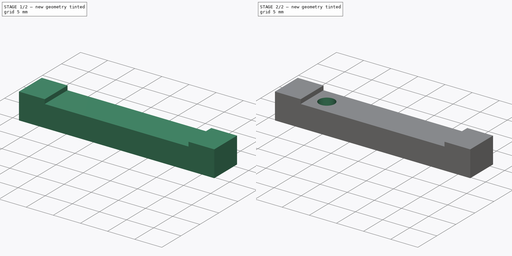
[diagram: build sequence overview — one tinted view per stage of 2, left to right]
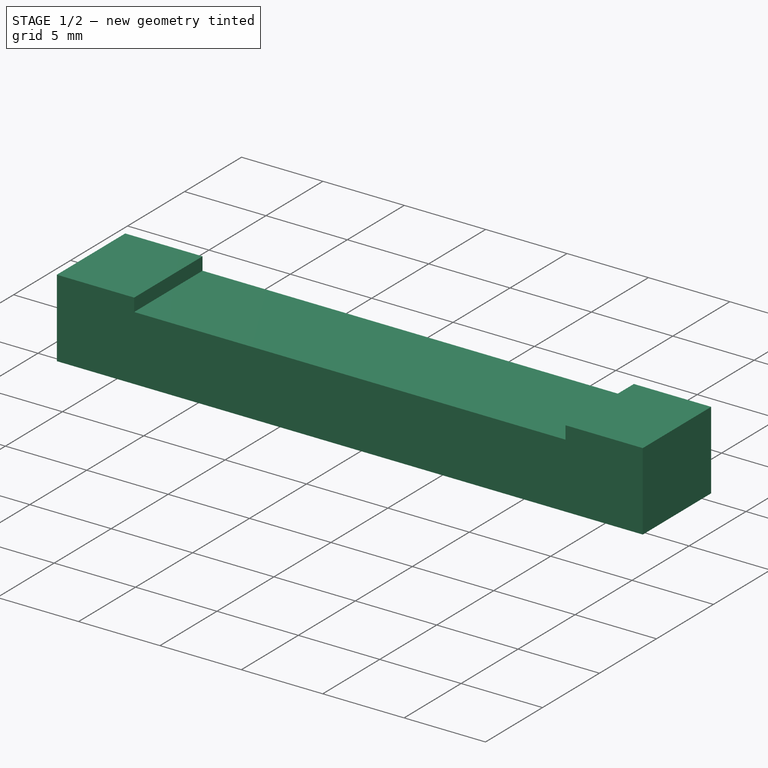
[diagram: stage 1 of 2 — iso view after this stage's code; geometry added in this stage tinted green]
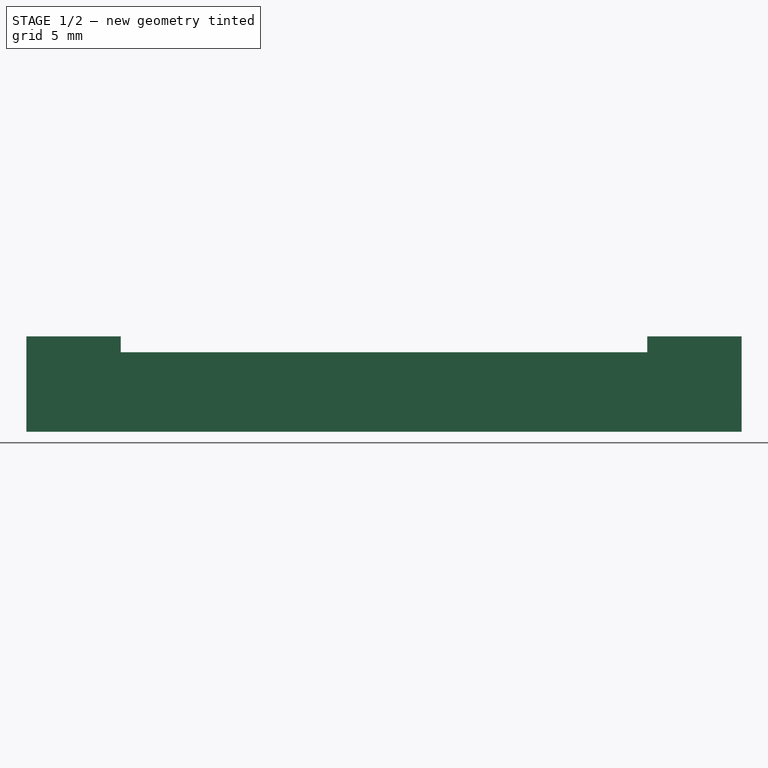
[diagram: stage 1 of 2 — front view after this stage's code; geometry added in this stage tinted green]
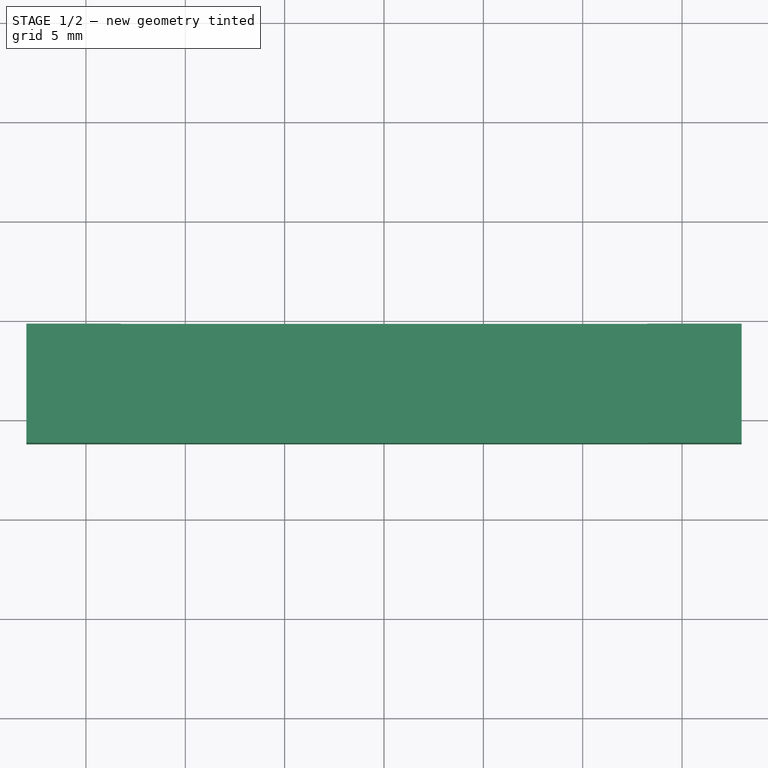
[diagram: stage 1 of 2 — top view after this stage's code; geometry added in this stage tinted green]
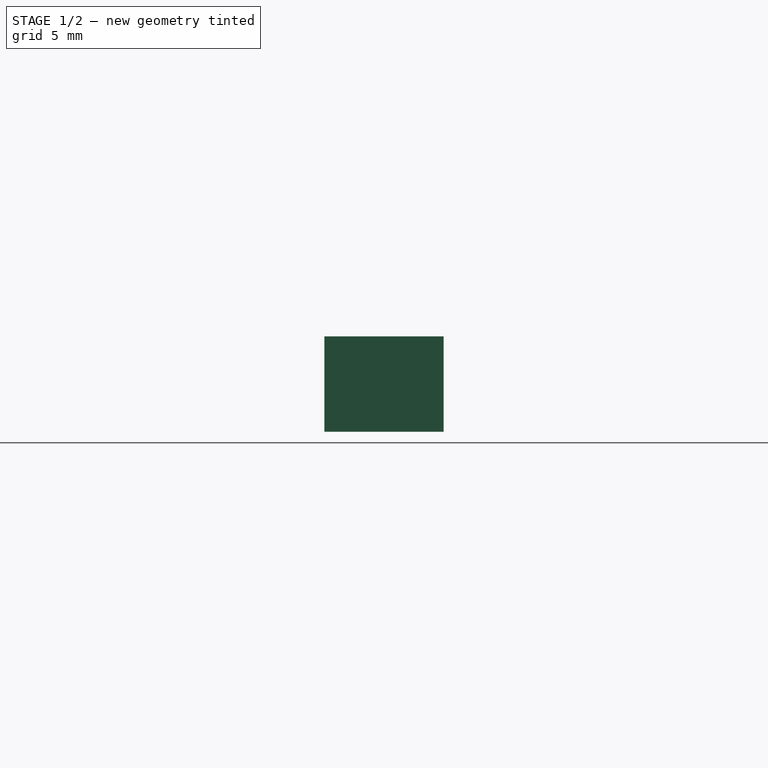
[diagram: stage 1 of 2 — right view after this stage's code; geometry added in this stage tinted green]
FCSTD DOCUMENT  (FreeCAD 1.0R39109 (Git))
Label: ElectronicsBayLolin32Lite-board-retainer.stl
License: All rights reserved
LicenseURL: http://en.wikipedia.org/wiki/All_rights_reserved
objects: Sketcher::SketchObject×2, PartDesign::Pad×1, PartDesign::Hole×1, PartDesign::Body×1, App::Part×1
note: 11 computed .brp shape members not serialized (recipe doc carries the construction recipe); baked Part::Feature solids carry a one-line shape summary decoded from their .brp

FEATURE [Sketcher::SketchObject] Sketch016
  ArcFitTolerance = 1e-06
  AttachmentOffset = pos=(0,0,0.2) rot=(0,0,1;0rad)
  AttachmentSupport = -> [XZ_Plane006]
  FullyConstrained = true
  MakeInternals = false
  MapMode = 5
  Placement = pos=(0,-0.2,0) rot=(1,0,0;1.5708rad)
  sketch-geometry (9):
    g0: LineSegment StartX=-18 StartY=2.8 StartZ=0 EndX=-18 EndY=-2 EndZ=0
    g1: LineSegment StartX=-18 StartY=-2 StartZ=0 EndX=18 EndY=-2 EndZ=0
    g2: LineSegment StartX=18 StartY=-2 StartZ=0 EndX=18 EndY=2.8 EndZ=0
    g3: LineSegment StartX=18 StartY=2.8 StartZ=0 EndX=13.25 EndY=2.8 EndZ=0
    g4: LineSegment StartX=13.25 StartY=2.8 StartZ=0 EndX=13.25 EndY=2 EndZ=0
    g5: LineSegment StartX=13.25 StartY=2 StartZ=0 EndX=-13.25 EndY=2 EndZ=0
    g6: LineSegment StartX=-13.25 StartY=2 StartZ=0 EndX=-13.25 EndY=2.8 EndZ=0
    g7: LineSegment StartX=-13.25 StartY=2.8 StartZ=0 EndX=-18 EndY=2.8 EndZ=0
    g8: GeomPoint X=0 Y=2 Z=0
  constraints (25):
    c: Vertical(g0)
    c: Coincident(g0,g1)
    c: Horizontal(g1)
    c: Coincident(g1,g2)
    c: Vertical(g2)
    c: Coincident(g2,g3)
    c: Coincident(g3,g4)
    c: Vertical(g4)
    c: Coincident(g4,g5)
    c: Horizontal(g5)
    c: Coincident(g5,g6)
    c: Coincident(g6,g7)
    c: Coincident(g7,g0)
    c: Horizontal(g3)
    c: Horizontal(g3,g6)
    c: Horizontal(g7)
    c: Equal(g7,g3)
    c: Vertical(g6)
    c: Symmetric(g4,g5,g8)
    c: PointOnObject(g8,g-2)
    c: Distance(g5,g-1) = 2
    c: DistanceY(g6,g6) = 0.8
    c: DistanceY(g0,g-1) = 2
    c: DistanceX(g5,g5) = 26.5
    c: DistanceX(g0,g2) = 36
FEATURE [PartDesign::Pad] Pad007
  Direction = (0,-1,2e-16)
  Length = 6
  Length2 = 10
  Placement = pos=(0,0,0) rot=(1,0,0;1.5708rad)
  Profile = -> Sketch016
  ReferenceAxis = -> Sketch016 [N_Axis]
  Refine = true
  Suppressed = false
  Type = 0
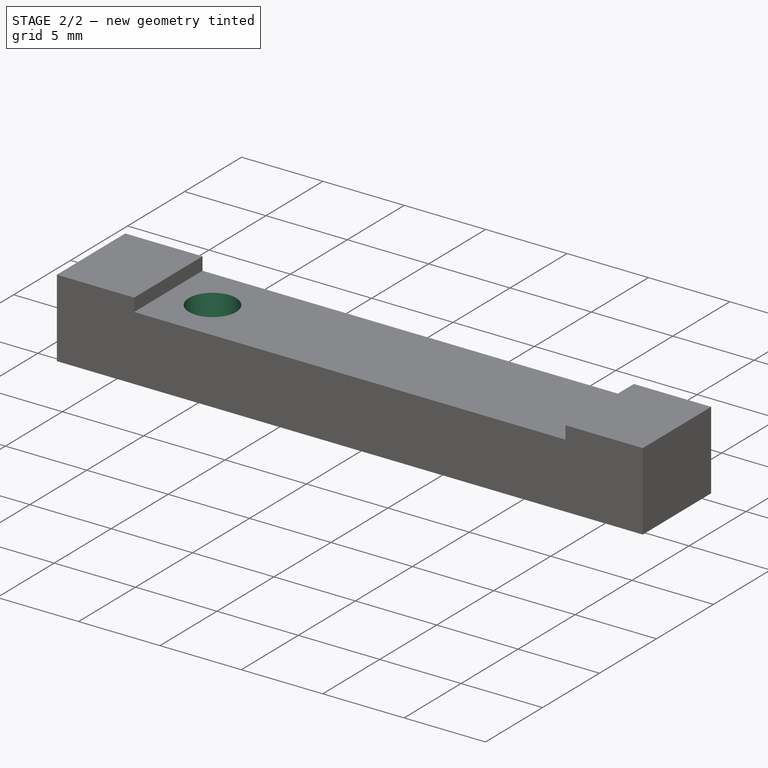
[diagram: stage 2 of 2 — iso view after this stage's code; geometry added in this stage tinted green]
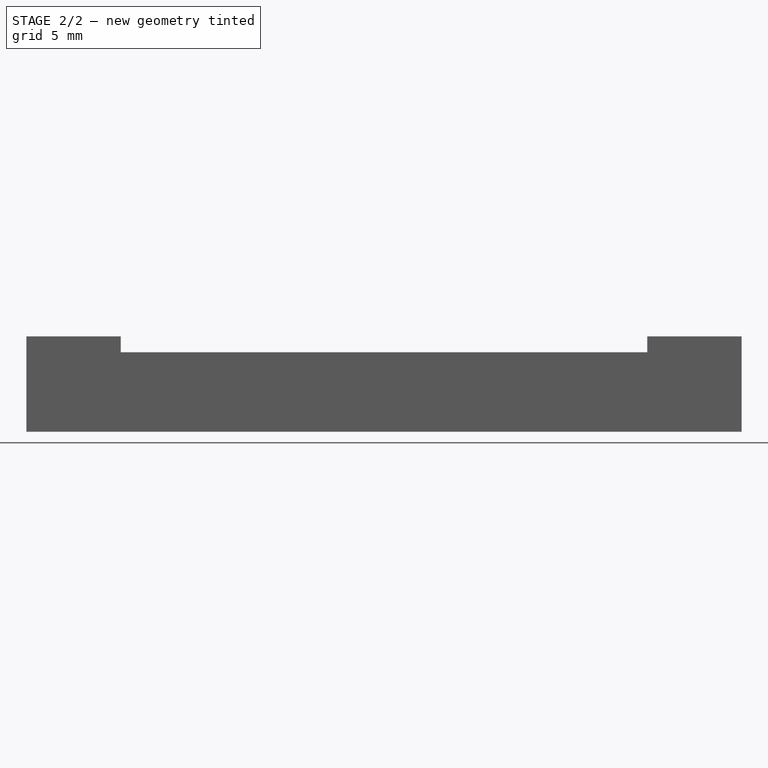
[diagram: stage 2 of 2 — front view after this stage's code; geometry added in this stage tinted green]
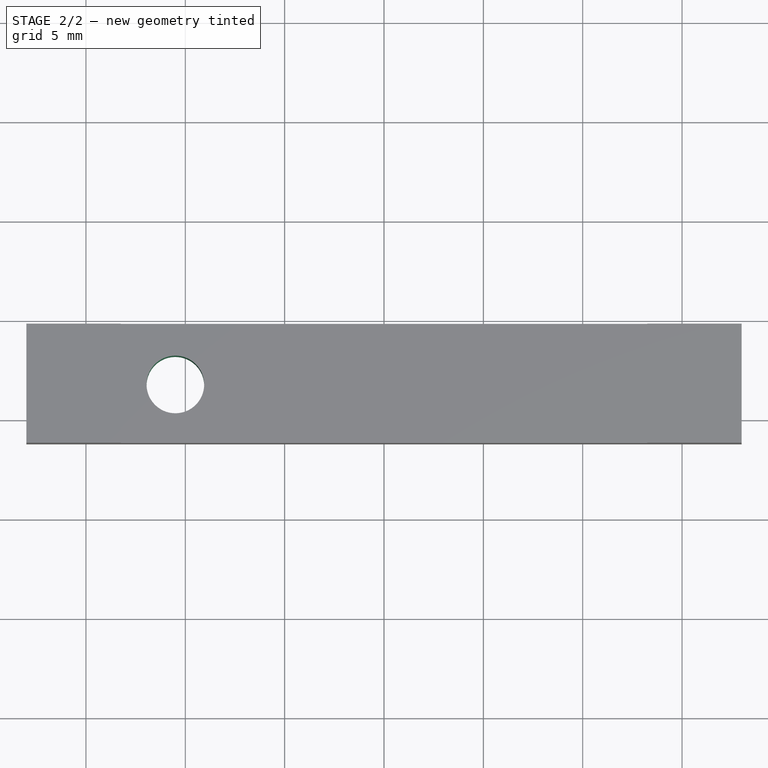
[diagram: stage 2 of 2 — top view after this stage's code; geometry added in this stage tinted green]
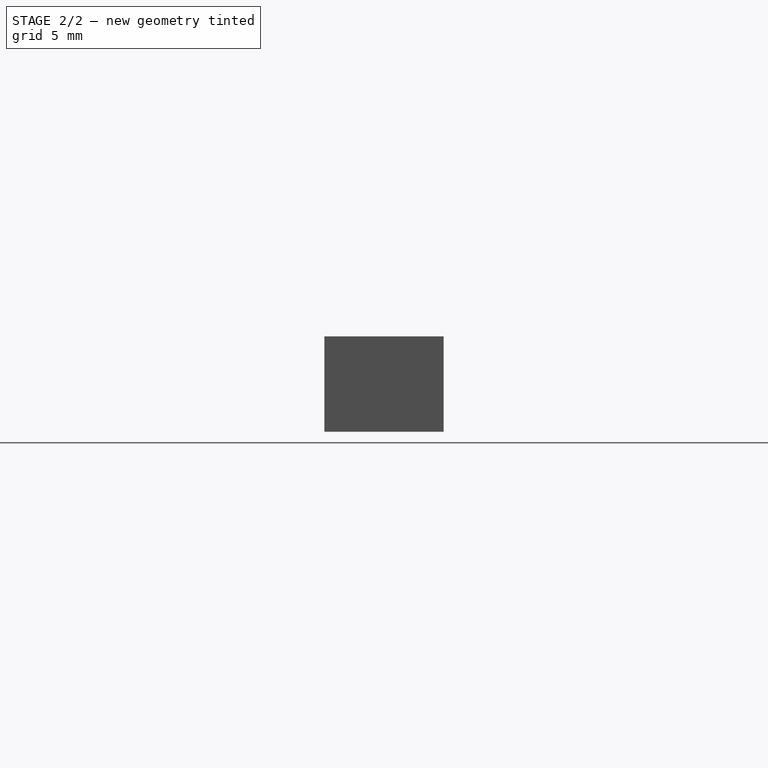
[diagram: stage 2 of 2 — right view after this stage's code; geometry added in this stage tinted green]
FEATURE [Sketcher::SketchObject] Sketch017
  ArcFitTolerance = 1e-06
  AttachmentOffset = pos=(0,0,-2) rot=(0,0,1;0rad)
  AttachmentSupport = -> [XY_Plane006]
  FullyConstrained = true
  MakeInternals = false
  MapMode = 5
  Placement = pos=(0,0,-2) rot=(0,0,1;0rad)
  sketch-geometry (1):
    g0: Circle CenterX=-10.5 CenterY=-3.25 CenterZ=0 NormalX=0 NormalY=0 NormalZ=1 AngleXU=0 Radius=1
  constraints (3):
    c: DistanceY(g0,g-1) = 3.25
    c: DistanceX(g0,g-1) = 10.5
    c: Diameter(g0) = 2
FEATURE [PartDesign::Hole] Hole003
  BaseFeature = -> Pad007
  CustomThreadClearance = 0
  Depth = 74.358
  DepthType = 1
  Diameter = 2.9
  DrillForDepth = false
  DrillPoint = 1
  DrillPointAngle = 118
  HoleCutCountersinkAngle = 90
  HoleCutCustomValues = false
  HoleCutDepth = 0
  HoleCutDiameter = 5
  HoleCutType = 0
  ModelThread = false
  Placement = pos=(0,0,0) rot=(1,0,0;1.5708rad)
  Profile = -> Sketch017
  Refine = true
  Reversed = true
  Suppressed = false
  Tapered = false
  TaperedAngle = 90
  ThreadClass = 0
  ThreadDepth = 74.358
  ThreadDepthType = 0
  ThreadDirection = 0
  ThreadFit = 0
  ThreadSize = 8
  ThreadType = 1
  Threaded = false
  UseCustomThreadClearance = false
FEATURE [PartDesign::Body] Body002  label="Body"
  AllowCompound = false
  Group = -> [Sketch016,Pad007,Sketch017,Hole003]
  Origin = -> Origin006
  Tip = -> Hole003
FEATURE [App::Part] Part003  label="BoardRetainer.stl"
  Group = -> [Body002]
  Origin = -> Origin005
  Placement = pos=(35,40.5,0) rot=(1,0,0;0rad)
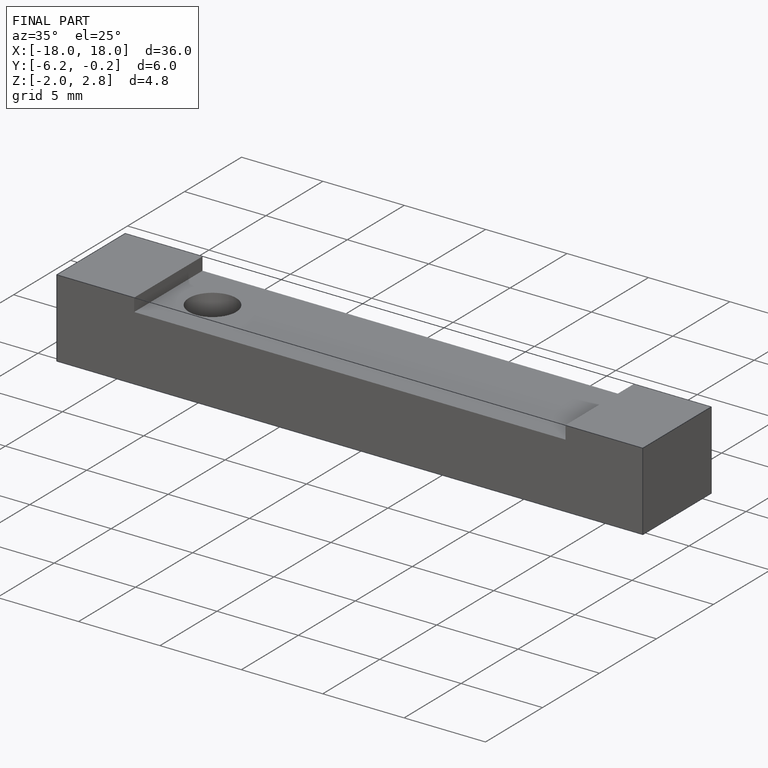
[diagram: finished part — iso view with bounding-box wireframe]
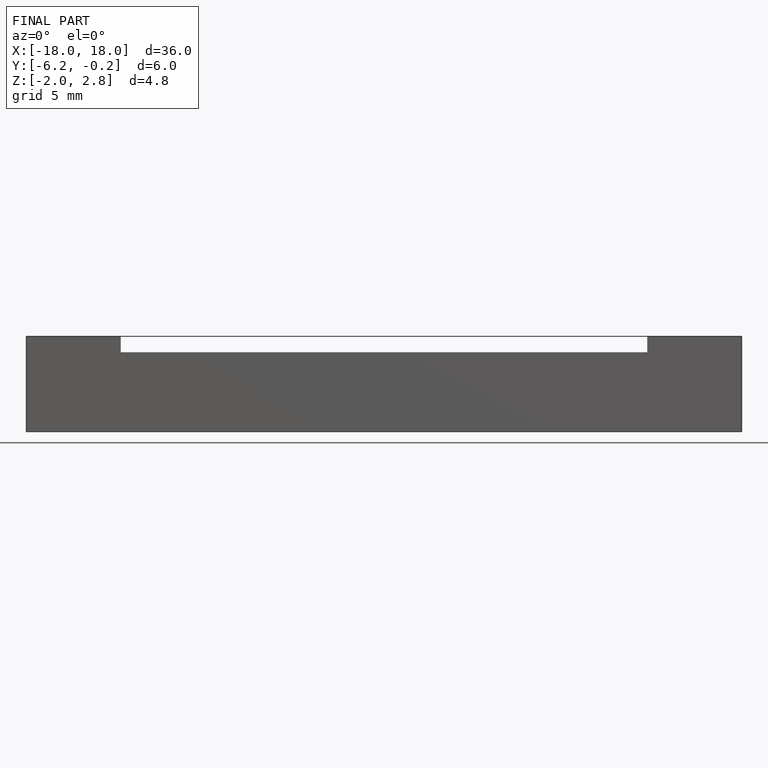
[diagram: finished part — front view with bounding-box wireframe]
